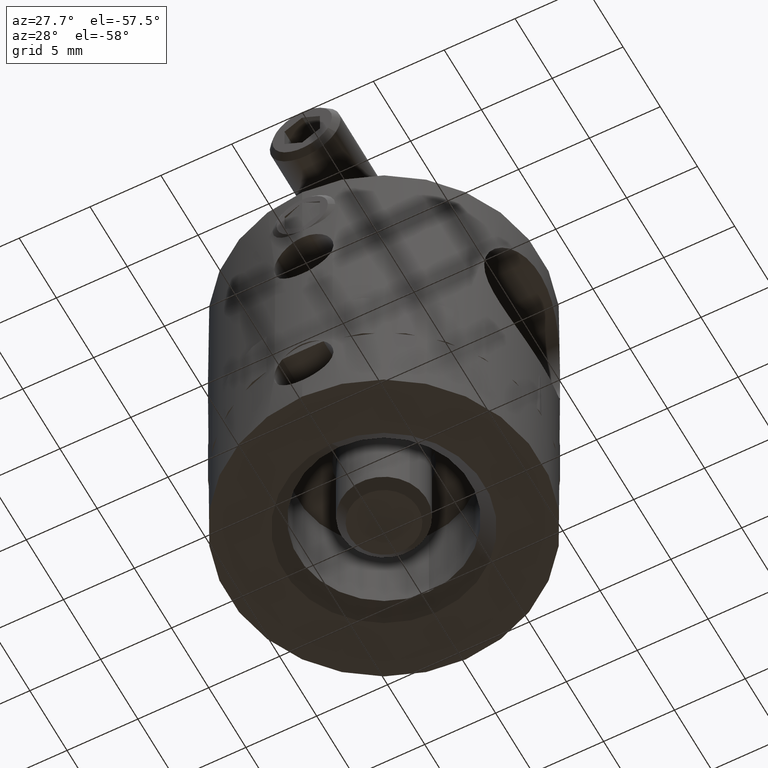
[diagram: clean part render]
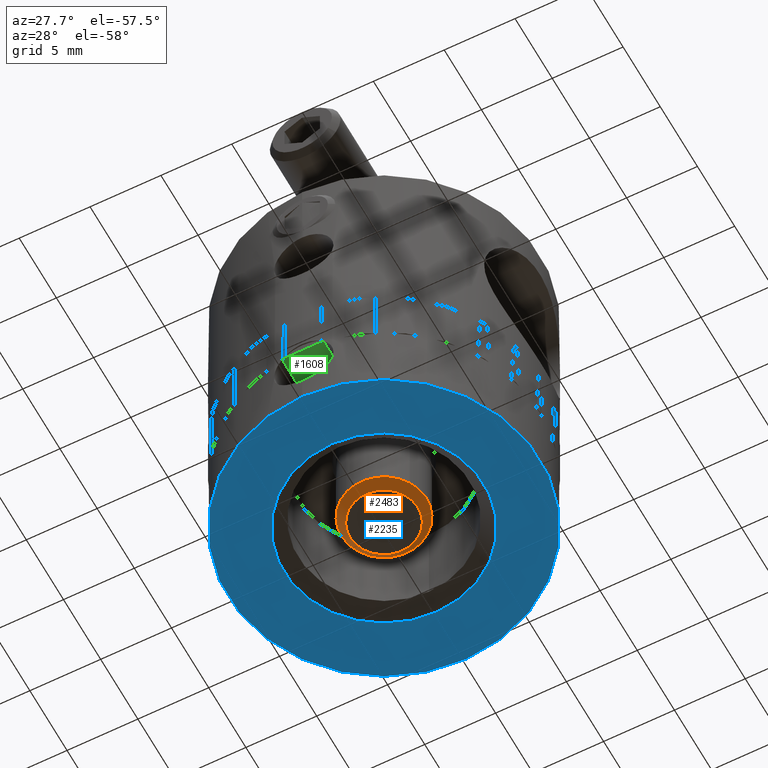
[diagram: same view with three faces highlighted in distinct colors, each labeled with its STEP entity id]
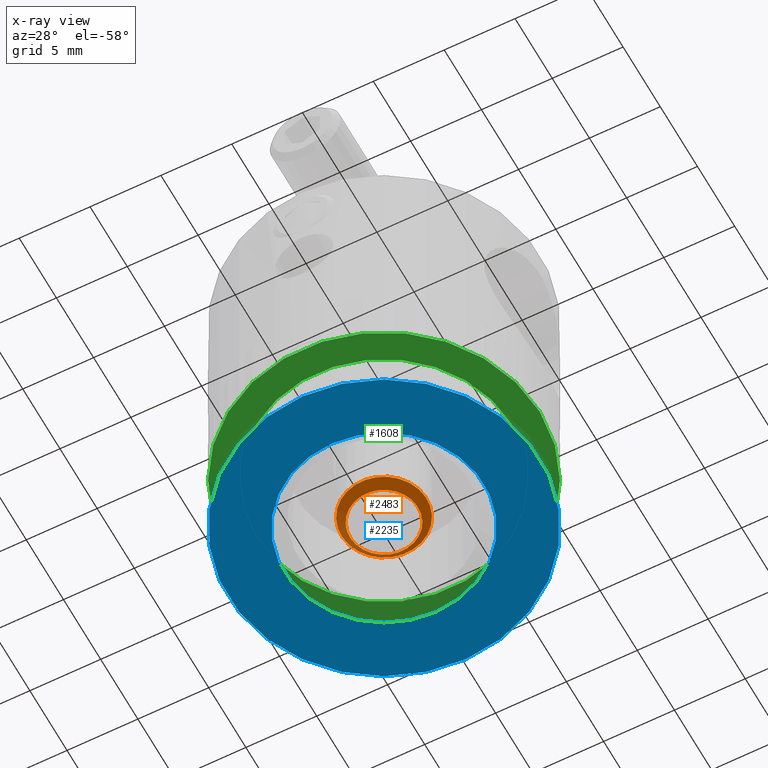
[diagram: x-ray of the same camera — body ghosted, the three highlighted faces saturated]
A machine part, auxiliary view with three faces highlighted in distinct colors.
The next image is the same camera in x-ray (body ghosted, the three faces saturated) — at least one of them is partly hidden behind the body in this view.
Their STEP definitions:

[orange] entity #2483 — the highlighted conical surface has half-angle 45 deg.
#16 = DIRECTION ( 'NONE',  ( 0.000000000000000000, 1.000000000000000000, 0.000000000000000000 ) ) ;
#270 = FACE_OUTER_BOUND ( 'NONE', #3670, .T. ) ;
#424 = EDGE_LOOP ( 'NONE', ( #3073 ) ) ;
#539 = CARTESIAN_POINT ( 'NONE',  ( 0.000000000000000000, -2.999999999999996891, 24.39999999999999858 ) ) ;
#732 = VERTEX_POINT ( 'NONE', #3002 ) ;
#751 = CIRCLE ( 'NONE', #5068, 2.399999999999985256 ) ;
#760 = EDGE_CURVE ( 'NONE', #732, #732, #751, .T. ) ;
#903 = ORIENTED_EDGE ( 'NONE', *, *, #5070, .F. ) ;
#1245 = DIRECTION ( 'NONE',  ( 0.000000000000000000, -1.000000000000000000, 0.000000000000000000 ) ) ;
#1805 = CIRCLE ( 'NONE', #3731, 2.999999999999993783 ) ;
#2483 = ADVANCED_FACE ( 'NONE', ( #2647, #270 ), #2769, .T. ) ;
#2533 = AXIS2_PLACEMENT_3D ( 'NONE', #2931, #4180, #16 ) ;
#2602 = DIRECTION ( 'NONE',  ( 0.000000000000000000, -1.000000000000000000, 0.000000000000000000 ) ) ;
#2647 = FACE_BOUND ( 'NONE', #424, .T. ) ;
#2769 = CONICAL_SURFACE ( 'NONE', #2533, 2.999999999999993783, 0.7853981633974501664 ) ;
#2771 = VERTEX_POINT ( 'NONE', #539 ) ;
#2931 = CARTESIAN_POINT ( 'NONE',  ( 0.000000000000000000, -2.988138189919541717E-15, 24.39999999999999858 ) ) ;
#3002 = CARTESIAN_POINT ( 'NONE',  ( 0.000000000000000000, -2.399999999999987921, 25.00000000000000355 ) ) ;
#3003 = CARTESIAN_POINT ( 'NONE',  ( 0.000000000000000000, -3.061616997868383437E-15, 25.00000000000000355 ) ) ;
#3073 = ORIENTED_EDGE ( 'NONE', *, *, #760, .F. ) ;
#3411 = DIRECTION ( 'NONE',  ( 0.000000000000000000, -1.224646799147353207E-16, 1.000000000000000000 ) ) ;
#3661 = DIRECTION ( 'NONE',  ( -0.000000000000000000, 1.224646799147351975E-16, -1.000000000000000000 ) ) ;
#3670 = EDGE_LOOP ( 'NONE', ( #903 ) ) ;
#3731 = AXIS2_PLACEMENT_3D ( 'NONE', #3758, #3661, #1245 ) ;
#3758 = CARTESIAN_POINT ( 'NONE',  ( 0.000000000000000000, -2.988138189919541717E-15, 24.39999999999999858 ) ) ;
#4180 = DIRECTION ( 'NONE',  ( -0.000000000000000000, 1.224646799147351975E-16, -1.000000000000000000 ) ) ;
#5068 = AXIS2_PLACEMENT_3D ( 'NONE', #3003, #3411, #2602 ) ;
#5070 = EDGE_CURVE ( 'NONE', #2771, #2771, #1805, .T. ) ;

[blue] entity #2235 — the highlighted planar face has unit normal (0, 0, 1).
#119 = DIRECTION ( 'NONE',  ( 0.000000000000000000, -1.000000000000000000, 0.000000000000000000 ) ) ;
#676 = EDGE_CURVE ( 'NONE', #4981, #4981, #2277, .T. ) ;
#892 = ORIENTED_EDGE ( 'NONE', *, *, #676, .T. ) ;
#927 = DIRECTION ( 'NONE',  ( -0.000000000000000000, 1.081595917263183534E-17, 1.000000000000000000 ) ) ;
#929 = AXIS2_PLACEMENT_3D ( 'NONE', #966, #2225, #119 ) ;
#966 = CARTESIAN_POINT ( 'NONE',  ( 0.000000000000000000, -2.812149384884277619E-16, -13.00000000000000178 ) ) ;
#988 = EDGE_LOOP ( 'NONE', ( #892 ) ) ;
#1247 = EDGE_LOOP ( 'NONE', ( #1844 ) ) ;
#1307 = CARTESIAN_POINT ( 'NONE',  ( 0.000000000000000000, -7.049999999999996270, -13.00000000000000178 ) ) ;
#1735 = AXIS2_PLACEMENT_3D ( 'NONE', #2174, #927, #4671 ) ;
#1778 = CARTESIAN_POINT ( 'NONE',  ( 0.000000000000000000, -11.00000000000000000, -13.00000000000000178 ) ) ;
#1844 = ORIENTED_EDGE ( 'NONE', *, *, #4637, .F. ) ;
#2174 = CARTESIAN_POINT ( 'NONE',  ( 0.000000000000000000, 1.773327923018335186E-31, -13.00000000000000178 ) ) ;
#2225 = DIRECTION ( 'NONE',  ( -0.000000000000000000, 1.081595917263183534E-17, 1.000000000000000000 ) ) ;
#2235 = ADVANCED_FACE ( 'NONE', ( #3608, #3750 ), #4519, .F. ) ;
#2277 = CIRCLE ( 'NONE', #1735, 7.049999999999996270 ) ;
#3255 = CARTESIAN_POINT ( 'NONE',  ( 0.000000000000000000, -2.812149384884277126E-16, -13.00000000000000178 ) ) ;
#3608 = FACE_BOUND ( 'NONE', #988, .T. ) ;
#3720 = AXIS2_PLACEMENT_3D ( 'NONE', #3255, #4477, #4123 ) ;
#3750 = FACE_OUTER_BOUND ( 'NONE', #1247, .T. ) ;
#4123 = DIRECTION ( 'NONE',  ( 0.000000000000000000, -1.000000000000000000, 1.081595917263183534E-17 ) ) ;
#4477 = DIRECTION ( 'NONE',  ( -0.000000000000000000, 1.081595917263183534E-17, 1.000000000000000000 ) ) ;
#4519 = PLANE ( 'NONE',  #3720 ) ;
#4637 = EDGE_CURVE ( 'NONE', #5375, #5375, #5049, .T. ) ;
#4671 = DIRECTION ( 'NONE',  ( 0.000000000000000000, -1.000000000000000000, 0.000000000000000000 ) ) ;
#4981 = VERTEX_POINT ( 'NONE', #1307 ) ;
#5049 = CIRCLE ( 'NONE', #929, 11.00000000000000000 ) ;
#5375 = VERTEX_POINT ( 'NONE', #1778 ) ;

[green] entity #1608 — the highlighted planar face has unit normal (0, 0, 1).
#49 = EDGE_CURVE ( 'NONE', #1535, #1535, #4293, .T. ) ;
#201 = DIRECTION ( 'NONE',  ( 1.000000000000000000, 0.000000000000000000, 0.000000000000000000 ) ) ;
#321 = AXIS2_PLACEMENT_3D ( 'NONE', #4009, #3586, #201 ) ;
#679 = PLANE ( 'NONE',  #3281 ) ;
#1535 = VERTEX_POINT ( 'NONE', #2173 ) ;
#1608 = ADVANCED_FACE ( 'NONE', ( #4142, #3030 ), #679, .F. ) ;
#2113 = CARTESIAN_POINT ( 'NONE',  ( 11.00000000000000000, 0.000000000000000000, -11.59999999999999964 ) ) ;
#2173 = CARTESIAN_POINT ( 'NONE',  ( 9.000000000000001776, 0.000000000000000000, -11.59999999999999964 ) ) ;
#2290 = EDGE_LOOP ( 'NONE', ( #4758 ) ) ;
#2364 = CARTESIAN_POINT ( 'NONE',  ( 0.000000000000000000, 0.000000000000000000, -11.59999999999999964 ) ) ;
#2395 = DIRECTION ( 'NONE',  ( -0.000000000000000000, -0.000000000000000000, 1.000000000000000000 ) ) ;
#2588 = VERTEX_POINT ( 'NONE', #2113 ) ;
#2727 = EDGE_CURVE ( 'NONE', #2588, #2588, #3677, .T. ) ;
#3030 = FACE_BOUND ( 'NONE', #3517, .T. ) ;
#3281 = AXIS2_PLACEMENT_3D ( 'NONE', #4434, #4449, #4034 ) ;
#3517 = EDGE_LOOP ( 'NONE', ( #4704 ) ) ;
#3586 = DIRECTION ( 'NONE',  ( -0.000000000000000000, -0.000000000000000000, 1.000000000000000000 ) ) ;
#3677 = CIRCLE ( 'NONE', #3924, 11.00000000000000000 ) ;
#3924 = AXIS2_PLACEMENT_3D ( 'NONE', #2364, #2395, #5281 ) ;
#4009 = CARTESIAN_POINT ( 'NONE',  ( 0.000000000000000000, 0.000000000000000000, -11.59999999999999964 ) ) ;
#4034 = DIRECTION ( 'NONE',  ( 1.000000000000000000, 0.000000000000000000, 0.000000000000000000 ) ) ;
#4142 = FACE_OUTER_BOUND ( 'NONE', #2290, .T. ) ;
#4293 = CIRCLE ( 'NONE', #321, 9.000000000000001776 ) ;
#4434 = CARTESIAN_POINT ( 'NONE',  ( 0.000000000000000000, 11.00000000000000000, -11.59999999999999964 ) ) ;
#4449 = DIRECTION ( 'NONE',  ( 0.000000000000000000, -0.000000000000000000, 1.000000000000000000 ) ) ;
#4704 = ORIENTED_EDGE ( 'NONE', *, *, #49, .T. ) ;
#4758 = ORIENTED_EDGE ( 'NONE', *, *, #2727, .F. ) ;
#5281 = DIRECTION ( 'NONE',  ( 1.000000000000000000, 0.000000000000000000, 0.000000000000000000 ) ) ;